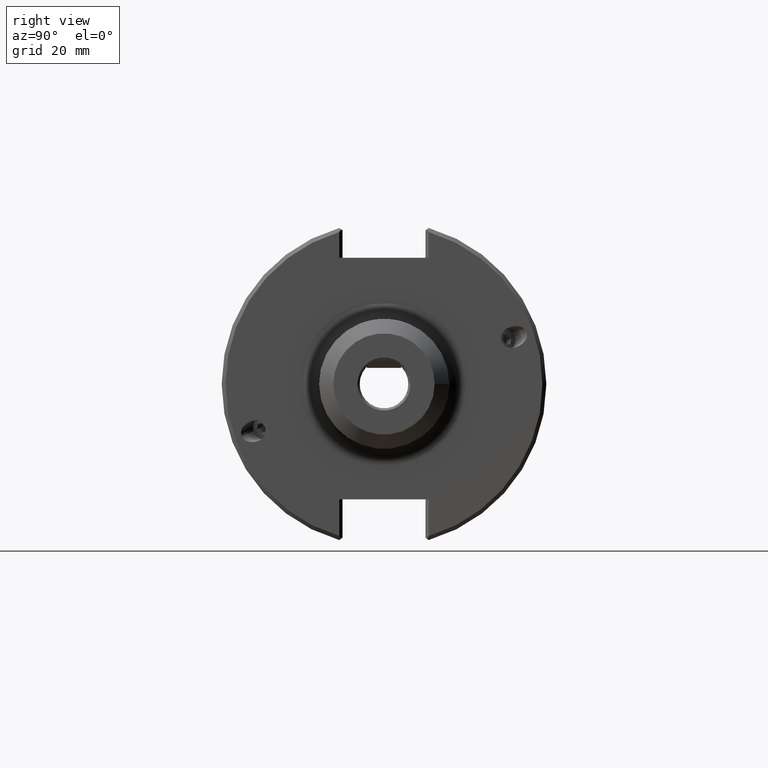
[diagram: clean part render]
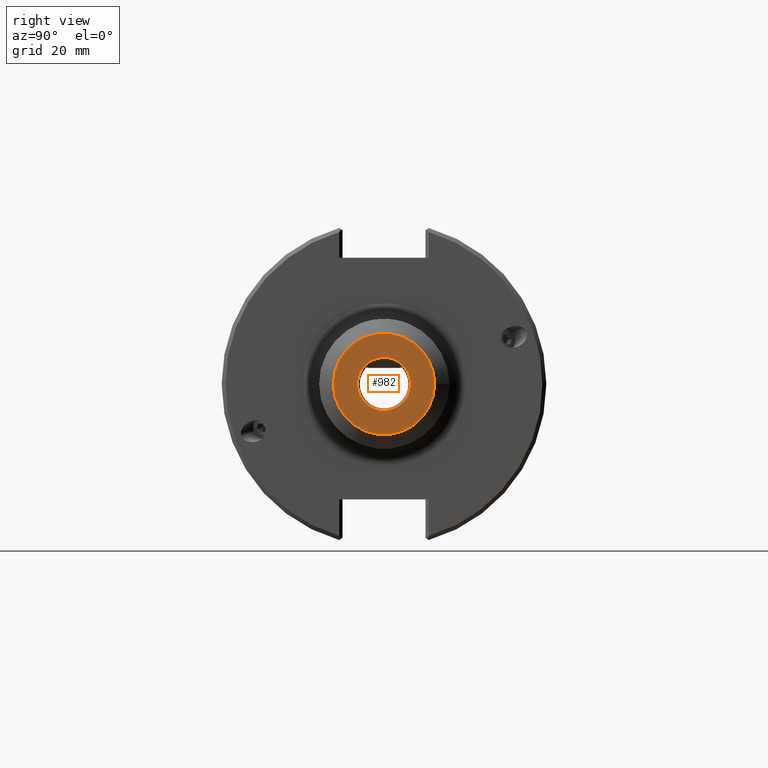
[diagram: same view with one face highlighted and labeled with its STEP entity id]
A machine part, right view. The second image highlights one B-rep face of the part: STEP entity #982.
In plain terms, the highlighted planar face has unit normal (1, 0, 0).
Its self-contained STEP definition (entity closure, byte-faithful):
#939=CARTESIAN_POINT('',(1.75,0.205,0.0));
#940=VERTEX_POINT('',#939);
#941=CARTESIAN_POINT('',(1.75,0.0,0.0));
#942=DIRECTION('',(-1.0,0.0,0.0));
#943=DIRECTION('',(0.0,1.0,0.0));
#944=AXIS2_PLACEMENT_3D('',#941,#942,#943);
#945=CIRCLE('',#944,0.205);
#946=EDGE_CURVE('',#940,#940,#945,.T.);
#956=CARTESIAN_POINT('',(1.75,0.39,0.0));
#957=VERTEX_POINT('',#956);
#958=CARTESIAN_POINT('',(1.75,0.0,0.0));
#959=DIRECTION('',(1.0,0.0,0.0));
#960=DIRECTION('',(0.0,1.0,0.0));
#961=AXIS2_PLACEMENT_3D('',#958,#959,#960);
#962=CIRCLE('',#961,0.39);
#963=EDGE_CURVE('',#957,#957,#962,.T.);
#971=CARTESIAN_POINT('',(1.75,0.195,0.0));
#972=DIRECTION('',(1.0,0.0,0.0));
#973=DIRECTION('',(0.0,0.0,-1.0));
#974=AXIS2_PLACEMENT_3D('',#971,#972,#973);
#975=PLANE('',#974);
#976=ORIENTED_EDGE('',*,*,#963,.T.);
#977=EDGE_LOOP('',(#976));
#978=FACE_OUTER_BOUND('',#977,.T.);
#979=ORIENTED_EDGE('',*,*,#946,.T.);
#980=EDGE_LOOP('',(#979));
#981=FACE_BOUND('',#980,.T.);
#982=ADVANCED_FACE('',(#978,#981),#975,.T.);